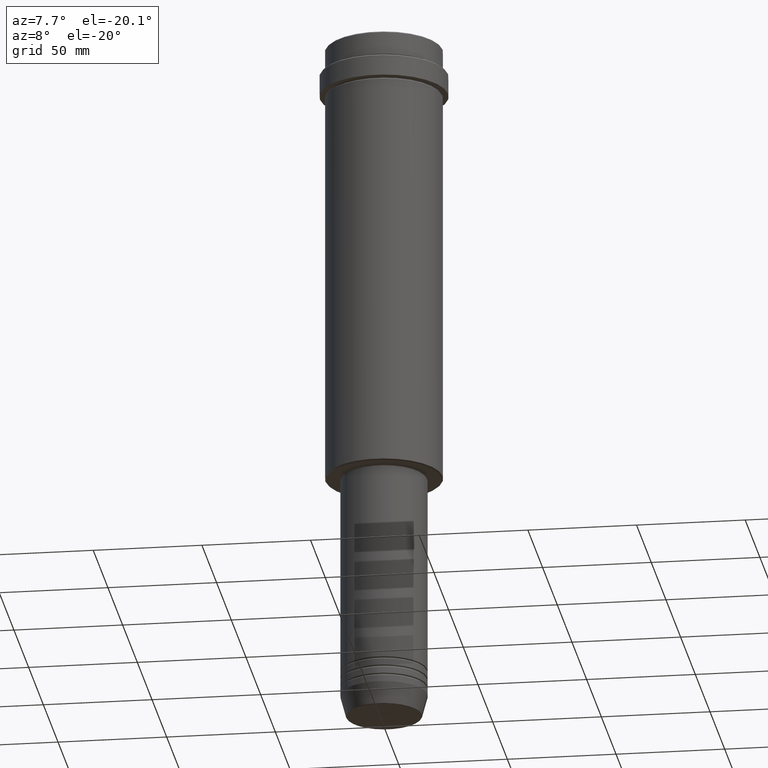
[diagram: clean part render]
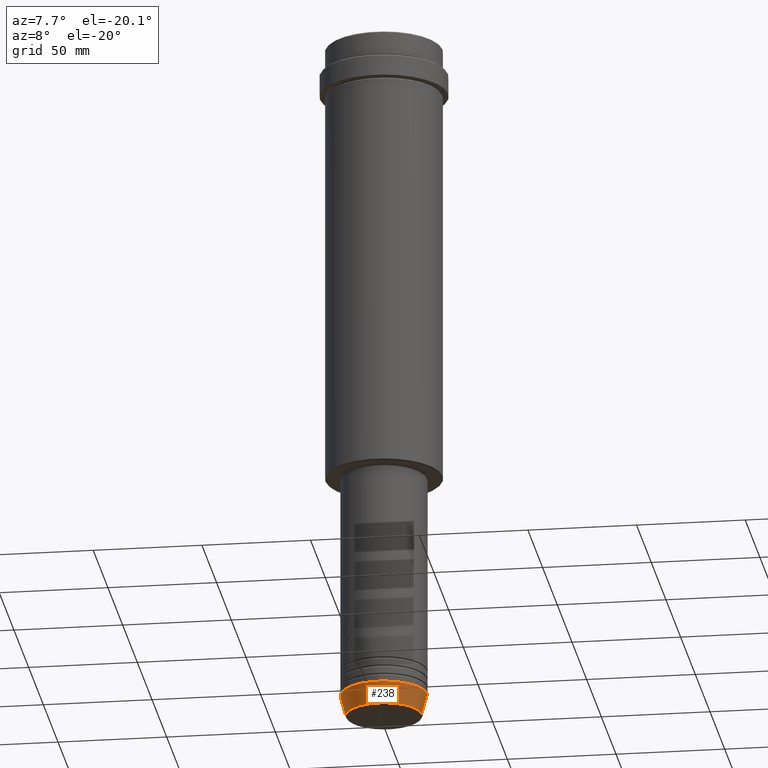
[diagram: same view with one face highlighted and labeled with its STEP entity id]
A machine part, auxiliary view. The second image highlights one B-rep face of the part: STEP entity #238.
In plain terms, the highlighted conical surface has half-angle 15 deg.
Its self-contained STEP definition (entity closure, byte-faithful):
#22 = VERTEX_POINT ( 'NONE', #473 ) ;
#24 = FACE_OUTER_BOUND ( 'NONE', #811, .T. ) ;
#66 = DIRECTION ( 'NONE',  ( 1.000000000000000000, 0.000000000000000000, 0.000000000000000000 ) ) ;
#105 = EDGE_CURVE ( 'NONE', #175, #22, #892, .T. ) ;
#166 = AXIS2_PLACEMENT_3D ( 'NONE', #1315, #677, #1308 ) ;
#175 = VERTEX_POINT ( 'NONE', #613 ) ;
#181 = CARTESIAN_POINT ( 'NONE',  ( -20.00000000000000000, 2.449293598294706513E-15, -313.0000000000000000 ) ) ;
#197 = AXIS2_PLACEMENT_3D ( 'NONE', #1202, #1327, #541 ) ;
#238 = ADVANCED_FACE ( 'NONE', ( #24 ), #1147, .T. ) ;
#302 = VERTEX_POINT ( 'NONE', #684 ) ;
#409 = EDGE_CURVE ( 'NONE', #302, #22, #944, .T. ) ;
#459 = ORIENTED_EDGE ( 'NONE', *, *, #105, .F. ) ;
#473 = CARTESIAN_POINT ( 'NONE',  ( 20.00000000000000000, 0.000000000000000000, -313.0000000000000000 ) ) ;
#527 = VECTOR ( 'NONE', #940, 1000.000000000000114 ) ;
#541 = DIRECTION ( 'NONE',  ( 1.000000000000000000, 0.000000000000000000, 0.000000000000000000 ) ) ;
#613 = CARTESIAN_POINT ( 'NONE',  ( -20.00000000000000000, 2.449293598294706513E-15, -313.0000000000000000 ) ) ;
#646 = VECTOR ( 'NONE', #1139, 1000.000000000000114 ) ;
#663 = AXIS2_PLACEMENT_3D ( 'NONE', #1289, #1072, #66 ) ;
#677 = DIRECTION ( 'NONE',  ( -0.000000000000000000, -0.000000000000000000, 1.000000000000000000 ) ) ;
#684 = CARTESIAN_POINT ( 'NONE',  ( 17.41980749484382684, 0.000000000000000000, -322.6294095225512706 ) ) ;
#714 = EDGE_CURVE ( 'NONE', #722, #175, #721, .T. ) ;
#721 = LINE ( 'NONE', #181, #527 ) ;
#722 = VERTEX_POINT ( 'NONE', #1362 ) ;
#811 = EDGE_LOOP ( 'NONE', ( #1263, #1062, #1153, #459 ) ) ;
#892 = CIRCLE ( 'NONE', #663, 20.00000000000000000 ) ;
#940 = DIRECTION ( 'NONE',  ( -0.2588190451025211836, 3.169619151431770488E-17, 0.9659258262890680902 ) ) ;
#944 = LINE ( 'NONE', #1052, #646 ) ;
#978 = EDGE_CURVE ( 'NONE', #722, #302, #1246, .T. ) ;
#1052 = CARTESIAN_POINT ( 'NONE',  ( 20.00000000000000000, 0.000000000000000000, -313.0000000000000000 ) ) ;
#1062 = ORIENTED_EDGE ( 'NONE', *, *, #978, .T. ) ;
#1072 = DIRECTION ( 'NONE',  ( -0.000000000000000000, -0.000000000000000000, 1.000000000000000000 ) ) ;
#1139 = DIRECTION ( 'NONE',  ( 0.2588190451025211836, 0.000000000000000000, 0.9659258262890680902 ) ) ;
#1147 = CONICAL_SURFACE ( 'NONE', #166, 20.00000000000000000, 0.2617993877991499074 ) ;
#1153 = ORIENTED_EDGE ( 'NONE', *, *, #409, .T. ) ;
#1202 = CARTESIAN_POINT ( 'NONE',  ( 0.000000000000000000, 0.000000000000000000, -322.6294095225512706 ) ) ;
#1246 = CIRCLE ( 'NONE', #197, 17.41980749484382684 ) ;
#1263 = ORIENTED_EDGE ( 'NONE', *, *, #714, .F. ) ;
#1289 = CARTESIAN_POINT ( 'NONE',  ( 0.000000000000000000, 0.000000000000000000, -313.0000000000000000 ) ) ;
#1308 = DIRECTION ( 'NONE',  ( 1.000000000000000000, 0.000000000000000000, 0.000000000000000000 ) ) ;
#1315 = CARTESIAN_POINT ( 'NONE',  ( 0.000000000000000000, 0.000000000000000000, -313.0000000000000000 ) ) ;
#1327 = DIRECTION ( 'NONE',  ( -0.000000000000000000, -0.000000000000000000, 1.000000000000000000 ) ) ;
#1362 = CARTESIAN_POINT ( 'NONE',  ( -17.41980749484382684, 2.291302373663531915E-15, -322.6294095225512706 ) ) ;